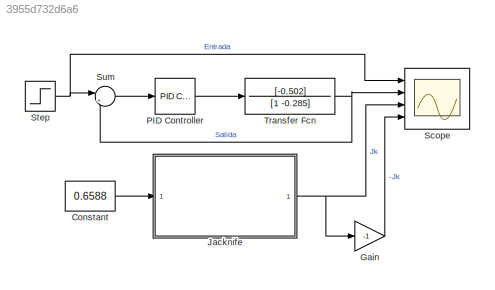
MODEL slx_3955d732d6a6
KIND model
CONFIG AbsTol = auto
CONFIG EnableMultiTasking = off
CONFIG FixedStep = auto
CONFIG MaxStep = auto
CONFIG MinStep = auto
CONFIG RelTol = 1e-3
CONFIG SampleTimeConstraint = Unconstrained
CONFIG Solver = VariableStepAuto
CONFIG SolverName = VariableStepAuto
CONFIG StartTime = 0.0
CONFIG StopTime = 6
BLOCK [Constant] Constant
  Value = 0.6588
BLOCK [Gain] Gain
  Gain = -1
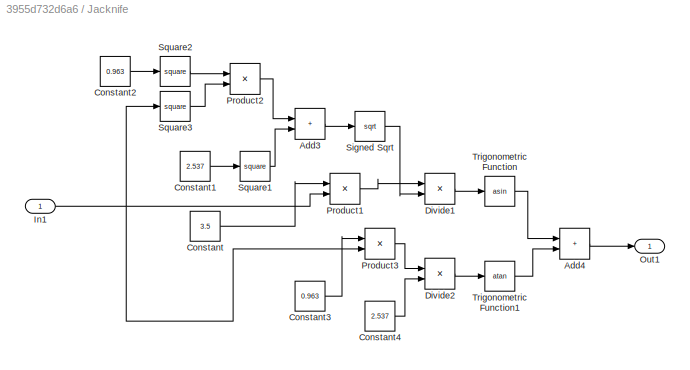
BLOCK [SubSystem] Jacknife
  Ports = [1, 1]
  RequestExecContextInheritance = off
BLOCK [Sum] Jacknife/Add3
  IconShape = rectangular
  Ports = [2, 1]
BLOCK [Sum] Jacknife/Add4
  IconShape = rectangular
  Ports = [2, 1]
BLOCK [Constant] Jacknife/Constant
  Value = 3.5
BLOCK [Constant] Jacknife/Constant1
  Value = 2.537
BLOCK [Constant] Jacknife/Constant2
  Value = 0.963
BLOCK [Constant] Jacknife/Constant3
  Value = 0.963
BLOCK [Constant] Jacknife/Constant4
  Value = 2.537
BLOCK [Product] Jacknife/Divide1
  Inputs = */
  Ports = [2, 1]
BLOCK [Product] Jacknife/Divide2
  Inputs = */
  Ports = [2, 1]
BLOCK [Inport] Jacknife/In1
BLOCK [Outport] Jacknife/Out1
BLOCK [Product] Jacknife/Product1
  Ports = [2, 1]
BLOCK [Product] Jacknife/Product2
  Ports = [2, 1]
BLOCK [Product] Jacknife/Product3
  Ports = [2, 1]
BLOCK [Sqrt] Jacknife/Signed Sqrt
BLOCK [Math] Jacknife/Square1
  Operator = square
  Ports = [1, 1]
BLOCK [Math] Jacknife/Square2
  Operator = square
  Ports = [1, 1]
BLOCK [Math] Jacknife/Square3
  Operator = square
  Ports = [1, 1]
BLOCK [Trigonometry] Jacknife/Trigonometric Function
  Operator = asin
  Ports = [1, 1]
BLOCK [Trigonometry] Jacknife/Trigonometric Function1
  Operator = atan
  Ports = [1, 1]
BLOCK [Reference] PID Controller  REF=simulink/Continuous/PID Controller
  Ports = [1, 1]
  SourceBlock = simulink/Continuous/PID Controller
  SourceProductBaseCode = SL
  SourceType = PID 1dof
BLOCK [Scope] Scope
  Floating = off
  NumInputPorts = 4
  Ports = [4]
  ScopeSpecificationString = Simulink.scopes.TimeScopeBlockCfg('CurrentConfiguration', extmgr.ConfigurationSet(extmgr.Configuration('Core','General UI',true),extmgr.Configuration('Core','Source UI',true),extmgr.Configuration('Sources','WiredSimulink',true),extmgr.Configuration('Visuals','Time Domain',true,'TimeAxisLabels','All','SerializedDisplays',{struct('MinYLimReal','-1.32453','MaxYLimReal','1.32453','YLabelReal','Radiane...<+1973ch>
BLOCK [Step] Step
  After = 0.78
  SampleTime = 0
  Time = 0
BLOCK [Sum] Sum
  Inputs = |+-
  Ports = [2, 1]
BLOCK [TransferFcn] Transfer Fcn
  Denominator = [1 -0.285]
  Numerator = [-0.502]
LINE Constant:1 -> Jacknife:1
LINE Gain:1 -> Scope:4
LINE Jacknife/Add3:1 -> Jacknife/Signed Sqrt:1
LINE Jacknife/Add4:1 -> Jacknife/Out1:1
LINE Jacknife/Constant1:1 -> Jacknife/Square1:1
LINE Jacknife/Constant2:1 -> Jacknife/Square2:1
LINE Jacknife/Constant3:1 -> Jacknife/Product3:1
LINE Jacknife/Constant4:1 -> Jacknife/Divide2:2
LINE Jacknife/Constant:1 -> Jacknife/Product1:1
LINE Jacknife/Divide1:1 -> Jacknife/Trigonometric Function:1
LINE Jacknife/Divide2:1 -> Jacknife/Trigonometric Function1:1
NET Jacknife/In1:1 -> Jacknife/Product1:2, Jacknife/Product3:2, Jacknife/Square3:1
LINE Jacknife/Product1:1 -> Jacknife/Divide1:1
LINE Jacknife/Product2:1 -> Jacknife/Add3:1
LINE Jacknife/Product3:1 -> Jacknife/Divide2:1
LINE Jacknife/Signed Sqrt:1 -> Jacknife/Divide1:2
LINE Jacknife/Square1:1 -> Jacknife/Add3:2
LINE Jacknife/Square2:1 -> Jacknife/Product2:1
LINE Jacknife/Square3:1 -> Jacknife/Product2:2
LINE Jacknife/Trigonometric Function1:1 -> Jacknife/Add4:2
LINE Jacknife/Trigonometric Function:1 -> Jacknife/Add4:1
NET Jacknife:1 -> Gain:1, Scope:3
LINE PID Controller:1 -> Transfer Fcn:1
NET Step:1 -> Scope:1, Sum:1
LINE Sum:1 -> PID Controller:1
NET Transfer Fcn:1 -> Scope:2, Sum:2
note: NET lines group one-source signal fan-out (src -> all destinations, sorted); 1:1 wires keep LINE
